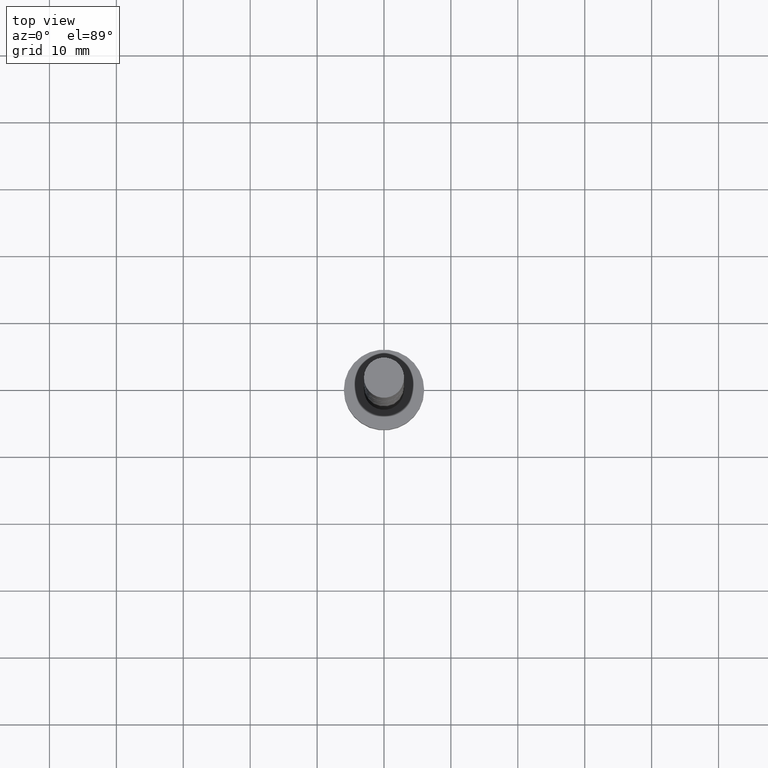
[diagram: clean part render]
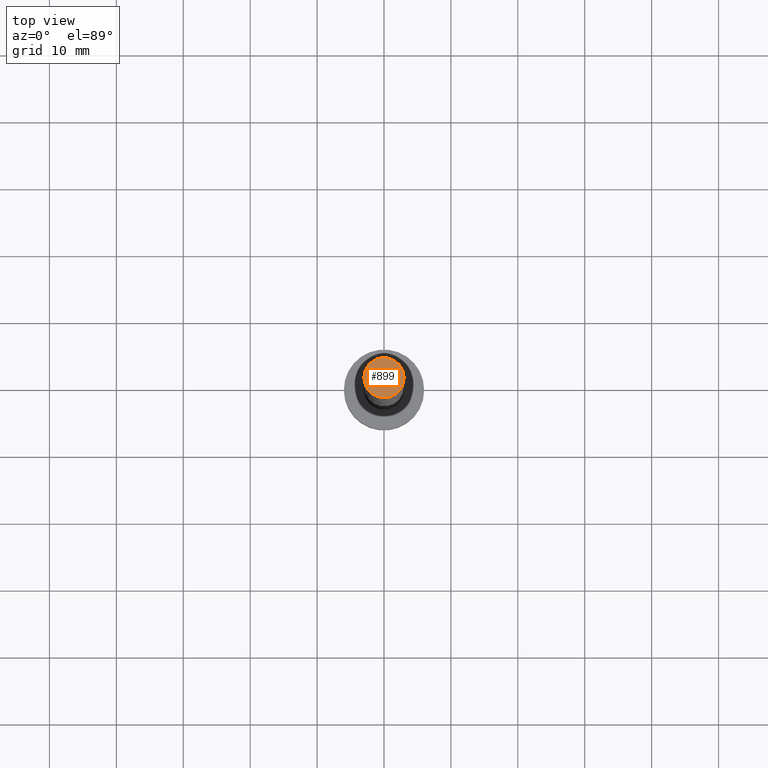
[diagram: same view with one face highlighted and labeled with its STEP entity id]
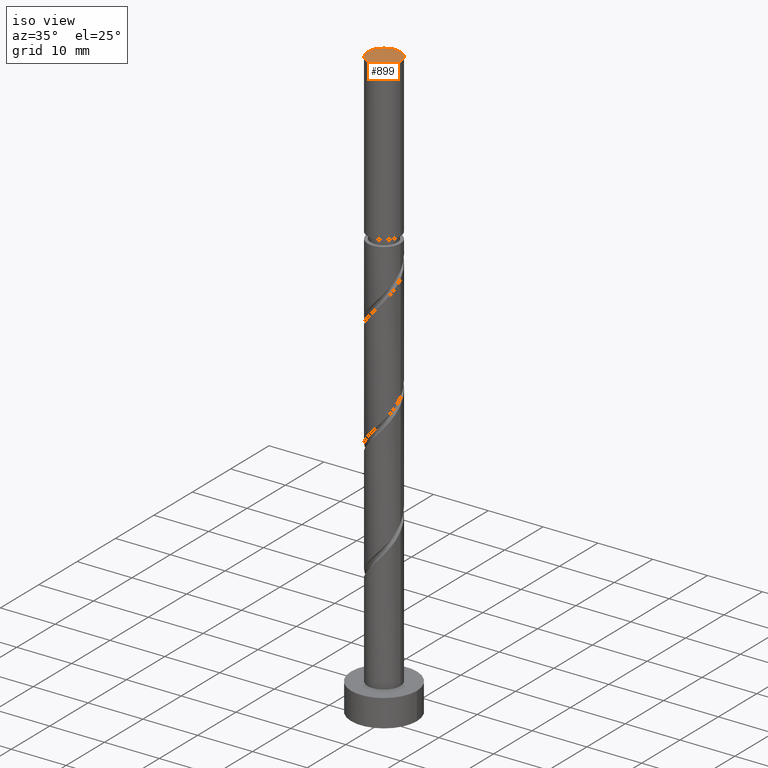
[diagram: same view with one face highlighted and labeled with its STEP entity id]
A machine part, top view. The second image highlights one B-rep face of the part: STEP entity #899.
A second angle (iso view) of the same face is appended — the face is thin or edge-on in the first view.
In plain terms, the highlighted planar face has unit normal (0, 0, 1).
Its self-contained STEP definition (entity closure, byte-faithful):
#233 = DIRECTION ( 'NONE',  ( 1.000000000000000000, 0.000000000000000000, 0.000000000000000000 ) ) ;
#311 = ORIENTED_EDGE ( 'NONE', *, *, #651, .T. ) ;
#336 = AXIS2_PLACEMENT_3D ( 'NONE', #1388, #768, #1253 ) ;
#363 = CARTESIAN_POINT ( 'NONE',  ( 3.000000000000000444, 3.673940397442060361E-16, 108.0000000000000000 ) ) ;
#366 = AXIS2_PLACEMENT_3D ( 'NONE', #465, #1416, #233 ) ;
#402 = ORIENTED_EDGE ( 'NONE', *, *, #565, .T. ) ;
#441 = FACE_OUTER_BOUND ( 'NONE', #1165, .T. ) ;
#465 = CARTESIAN_POINT ( 'NONE',  ( 0.000000000000000000, 0.000000000000000000, 108.0000000000000000 ) ) ;
#493 = CIRCLE ( 'NONE', #366, 3.000000000000000444 ) ;
#565 = EDGE_CURVE ( 'NONE', #1233, #1378, #931, .T. ) ;
#651 = EDGE_CURVE ( 'NONE', #1378, #1233, #493, .T. ) ;
#768 = DIRECTION ( 'NONE',  ( 0.000000000000000000, 0.000000000000000000, 1.000000000000000000 ) ) ;
#899 = ADVANCED_FACE ( 'NONE', ( #441 ), #937, .T. ) ;
#931 = CIRCLE ( 'NONE', #336, 3.000000000000000444 ) ;
#937 = PLANE ( 'NONE',  #1264 ) ;
#962 = DIRECTION ( 'NONE',  ( 0.000000000000000000, 0.000000000000000000, 1.000000000000000000 ) ) ;
#972 = DIRECTION ( 'NONE',  ( 1.000000000000000000, 0.000000000000000000, -0.000000000000000000 ) ) ;
#1165 = EDGE_LOOP ( 'NONE', ( #402, #311 ) ) ;
#1193 = CARTESIAN_POINT ( 'NONE',  ( 0.000000000000000000, 0.000000000000000000, 108.0000000000000000 ) ) ;
#1233 = VERTEX_POINT ( 'NONE', #1312 ) ;
#1253 = DIRECTION ( 'NONE',  ( 1.000000000000000000, 0.000000000000000000, 0.000000000000000000 ) ) ;
#1264 = AXIS2_PLACEMENT_3D ( 'NONE', #1193, #962, #972 ) ;
#1312 = CARTESIAN_POINT ( 'NONE',  ( -3.000000000000000444, 0.000000000000000000, 108.0000000000000000 ) ) ;
#1378 = VERTEX_POINT ( 'NONE', #363 ) ;
#1388 = CARTESIAN_POINT ( 'NONE',  ( 0.000000000000000000, 0.000000000000000000, 108.0000000000000000 ) ) ;
#1416 = DIRECTION ( 'NONE',  ( 0.000000000000000000, 0.000000000000000000, 1.000000000000000000 ) ) ;